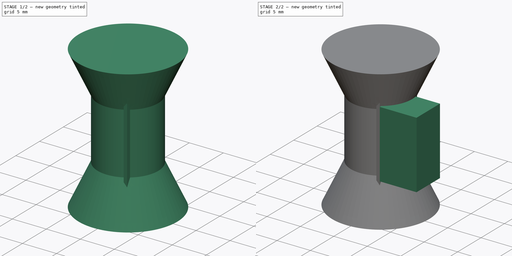
[diagram: build sequence overview — one tinted view per stage of 2, left to right]
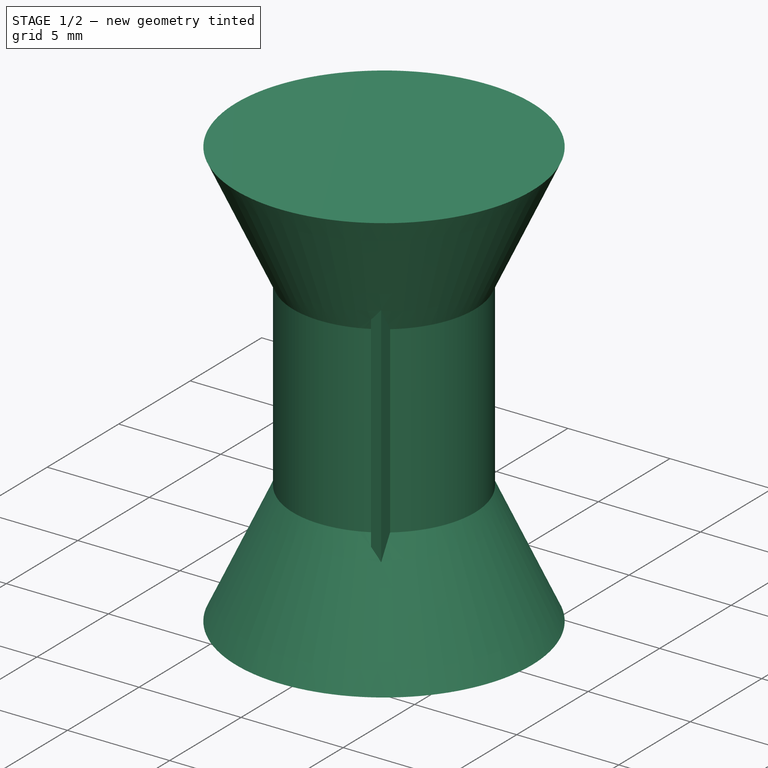
[diagram: stage 1 of 2 — iso view after this stage's code; geometry added in this stage tinted green]
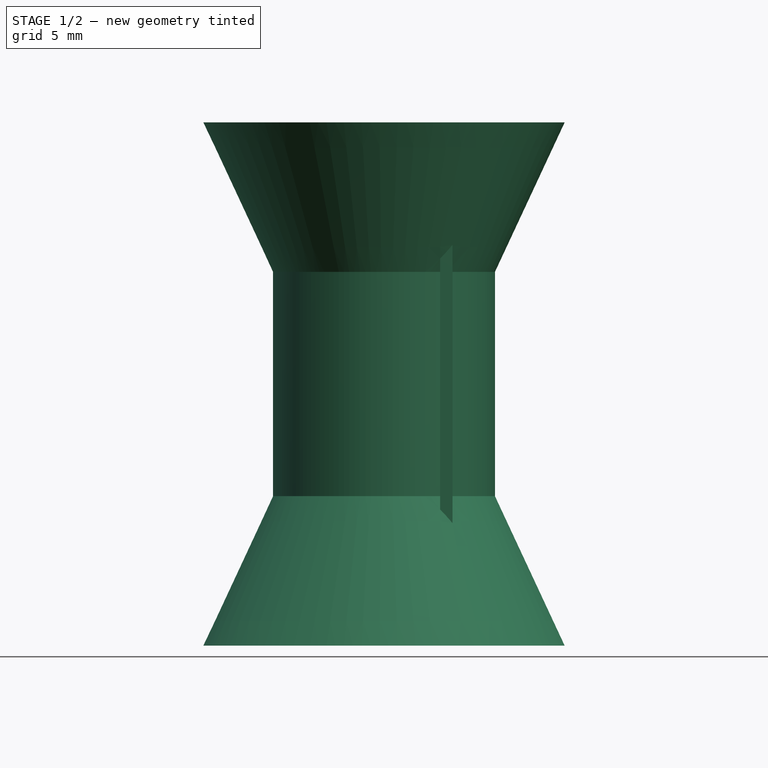
[diagram: stage 1 of 2 — front view after this stage's code; geometry added in this stage tinted green]
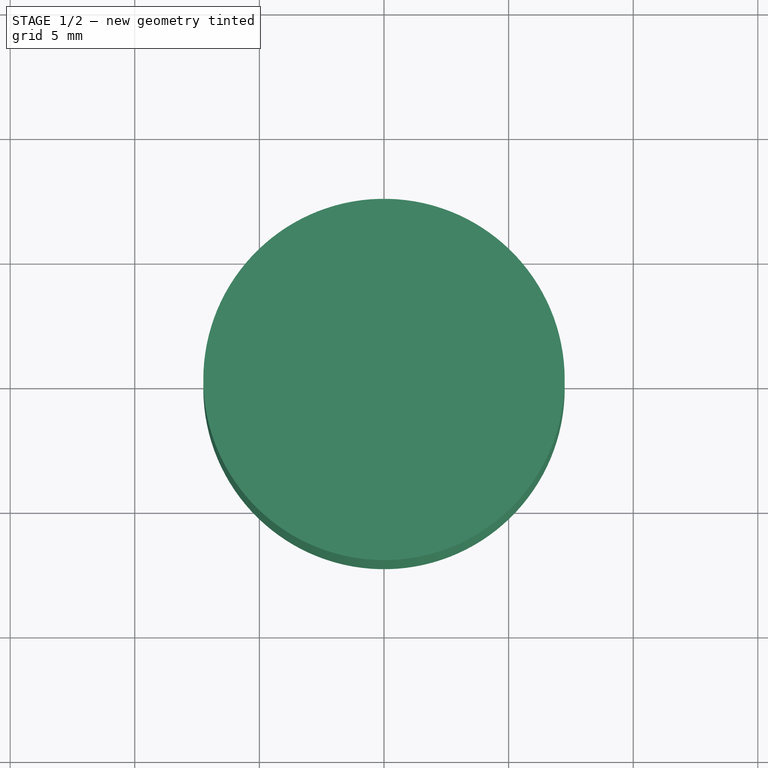
[diagram: stage 1 of 2 — top view after this stage's code; geometry added in this stage tinted green]
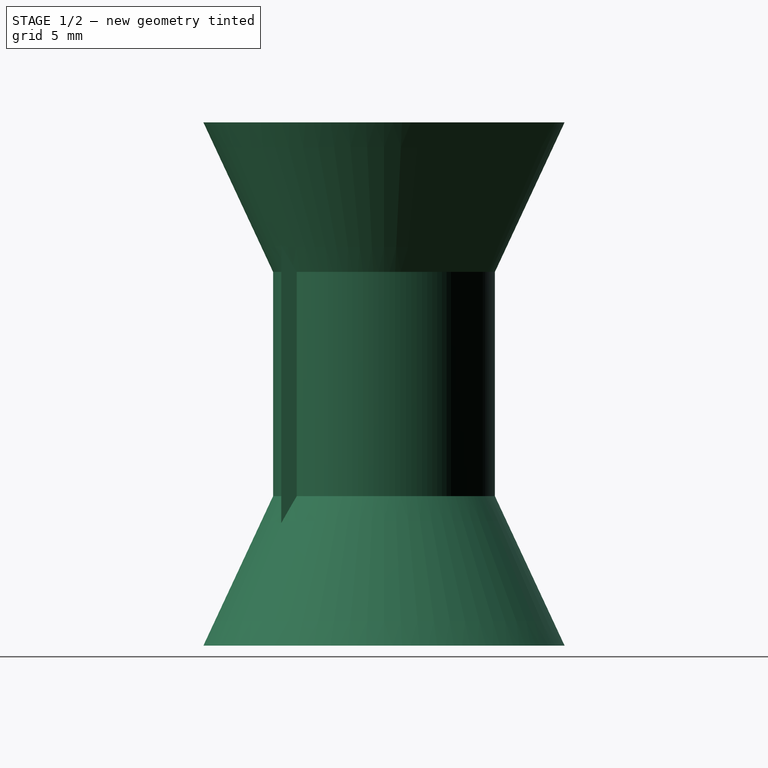
[diagram: stage 1 of 2 — right view after this stage's code; geometry added in this stage tinted green]
FCSTD DOCUMENT  (FreeCAD 0.16R6712 (Git))
Label: paddle_hindge_bool_v2
License: All rights reserved
LicenseURL: http://en.wikipedia.org/wiki/All_rights_reserved
objects: Sketcher::SketchObject×4, PartDesign::Pad×2, PartDesign::Revolution×1
note: 10 computed .brp shape members not serialized (recipe doc carries the construction recipe); baked Part::Feature solids carry a one-line shape summary decoded from their .brp

FEATURE [Sketcher::SketchObject] Sketch
  Placement = pos=(0,0,0) rot=(1,0,0;1.5708rad)
  sketch-geometry (8):
    g0: LineSegment StartX=0 StartY=0 StartZ=0 EndX=7.25 EndY=0 EndZ=0
    g1: LineSegment StartX=7.25 StartY=0 StartZ=0 EndX=4.45215 EndY=6 EndZ=0
    g2: LineSegment StartX=4.45215 StartY=6 StartZ=0 EndX=4.45215 EndY=15 EndZ=0
    g3: LineSegment StartX=4.45215 StartY=15 StartZ=0 EndX=7.25 EndY=21 EndZ=0
    g4: LineSegment StartX=7.25 StartY=21 StartZ=0 EndX=0 EndY=21 EndZ=0
    g5: LineSegment [constr] StartX=0 StartY=15 StartZ=0 EndX=4.45215 EndY=15 EndZ=0
    g6: LineSegment [constr] StartX=4.45215 StartY=6 StartZ=0 EndX=0 EndY=6 EndZ=0
    g7: LineSegment StartX=0 StartY=21 StartZ=0 EndX=0 EndY=0 EndZ=0
  constraints (24):
    c: Horizontal(g0)
    c: Coincident(g0,g1)
    c: Coincident(g1,g2)
    c: Vertical(g2)
    c: Coincident(g2,g3)
    c: Coincident(g3,g4)
    c: Horizontal(g4)
    c: Equal(g0,g4)
    c: Coincident(g5,g2)
    c: Horizontal(g5)
    c: Coincident(g6,g1)
    c: Equal(g1,g3)
    c: Coincident(g7,g4)
    c: Vertical(g7)
    c: Coincident(g0,g7)
    c: Coincident(g0,g-1)
    c: Equal(g6,g5)
    c: Horizontal(g6)
    c: PointOnObject(g5,g7)
    c: Angle(g1,g0) = 1.13446
    c: DistanceX(g0,g0) = 7.25
    c: DistanceY(g7,g7) = 21
    c: DistanceY(g2,g2) = 9
    c: DistanceX(g5,g5) = 4.45215
FEATURE [PartDesign::Revolution] Revolution
  Angle = 360
  Axis = (0,0,1)
  Base = (0,0,0)
  Placement = pos=(0,0,0) rot=(1,0,0;1.5708rad)
  ReferenceAxis = -> Sketch [V_Axis]
  Reversed = true
  Sketch = -> Sketch
FEATURE [Sketcher::SketchObject] Sketch001
  Placement = pos=(0,0,21) rot=(0,0,1;3.14159rad)
  Support = -> Revolution [Face5]
  sketch-geometry (8):
    g0: LineSegment StartX=-2.25 StartY=4.125 StartZ=0 EndX=-2.75 EndY=4.125 EndZ=0
    g1: LineSegment StartX=-2.75 StartY=4.125 StartZ=0 EndX=-2.75 EndY=-2.125 EndZ=0
    g2: LineSegment StartX=-2.75 StartY=-2.125 StartZ=0 EndX=-2.25 EndY=-2.125 EndZ=0
    g3: LineSegment StartX=-2.25 StartY=-2.125 StartZ=0 EndX=-2.25 EndY=4.125 EndZ=0
    g4: LineSegment [constr] StartX=-2.25 StartY=4.125 StartZ=0 EndX=-2.5 EndY=1 EndZ=0
    g5: LineSegment [constr] StartX=-2.75 StartY=4.125 StartZ=0 EndX=-2.5 EndY=1 EndZ=0
    g6: LineSegment [constr] StartX=-2.75 StartY=-2.125 StartZ=0 EndX=-2.5 EndY=1 EndZ=0
    g7: LineSegment [constr] StartX=-2.25 StartY=-2.125 StartZ=0 EndX=-2.5 EndY=1 EndZ=0
  constraints (22):
    c: Coincident(g0,g1)
    c: Coincident(g1,g2)
    c: Coincident(g2,g3)
    c: Coincident(g3,g0)
    c: Horizontal(g0)
    c: Horizontal(g2)
    c: Vertical(g1)
    c: Vertical(g3)
    c: DistanceX(g2,g-1) = 2.25
    c: DistanceX(g2,g2) = 0.5
    c: DistanceY(g1,g1) = 6.25
    c: Coincident(g4,g0)
    c: Coincident(g5,g0)
    c: Coincident(g5,g4)
    c: Coincident(g6,g1)
    c: Coincident(g7,g2)
    c: Coincident(g4,g6)
    c: Coincident(g4,g7)
    c: Equal(g4,g5)
    c: Equal(g5,g7)
    c: Equal(g7,g6)
    c: DistanceY(g-1,g4) = 1
FEATURE [PartDesign::Pad] Pad
  Length = 20
  Length2 = 100
  Placement = pos=(0,0,0) rot=(1,0,0;1.5708rad)
  Reversed = true
  Sketch = -> Sketch001
  Type = 0
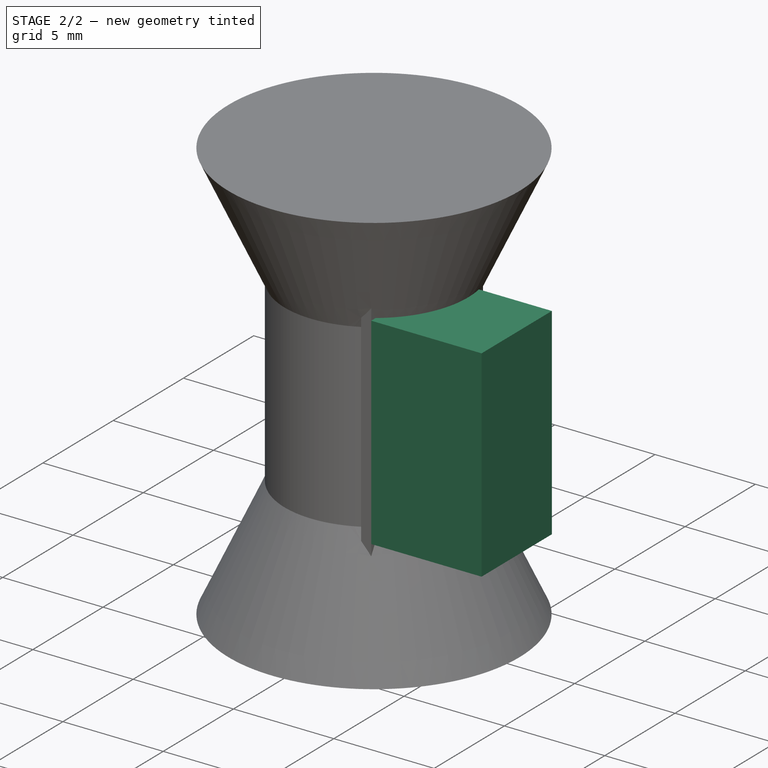
[diagram: stage 2 of 2 — iso view after this stage's code; geometry added in this stage tinted green]
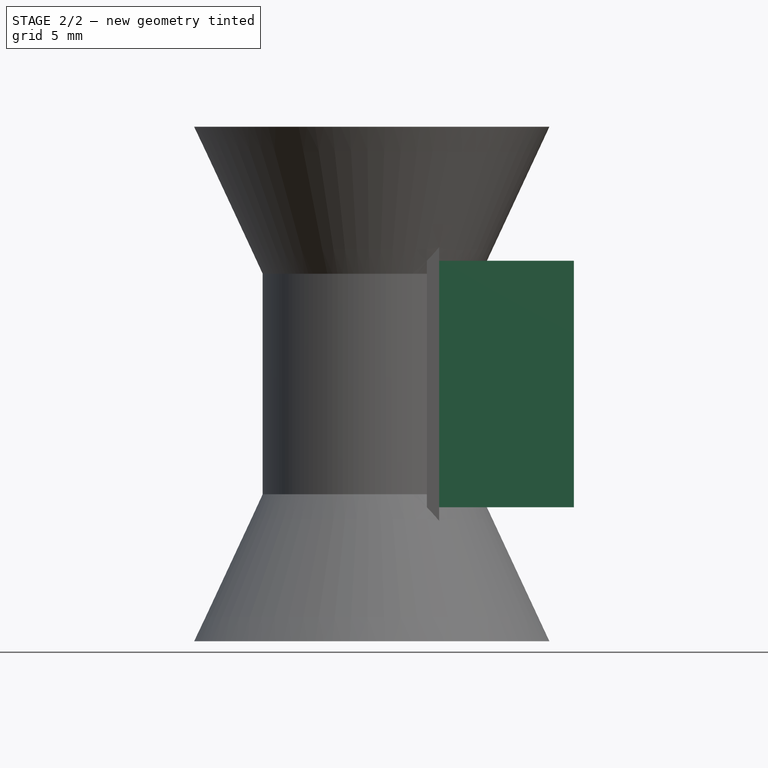
[diagram: stage 2 of 2 — front view after this stage's code; geometry added in this stage tinted green]
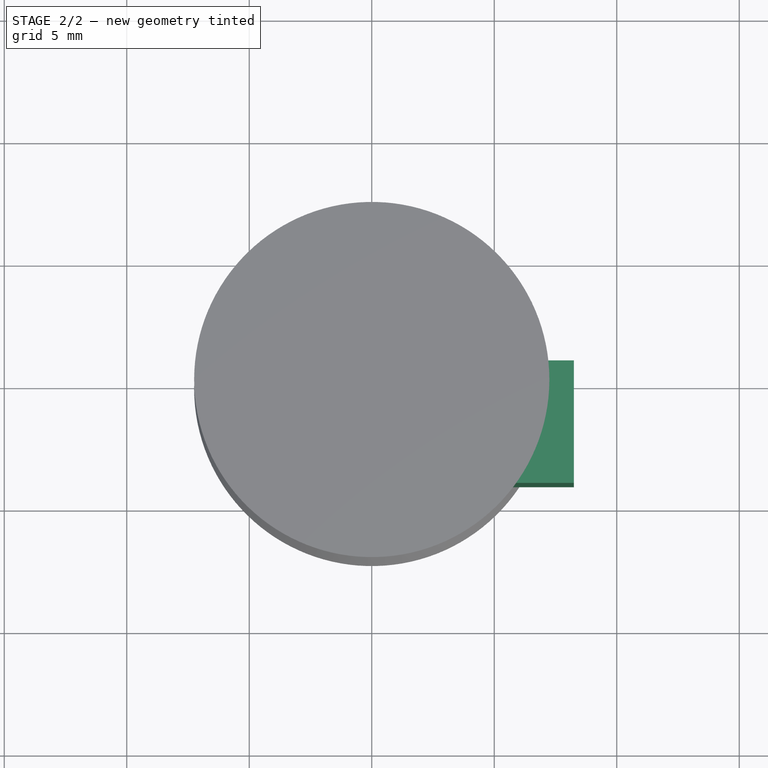
[diagram: stage 2 of 2 — top view after this stage's code; geometry added in this stage tinted green]
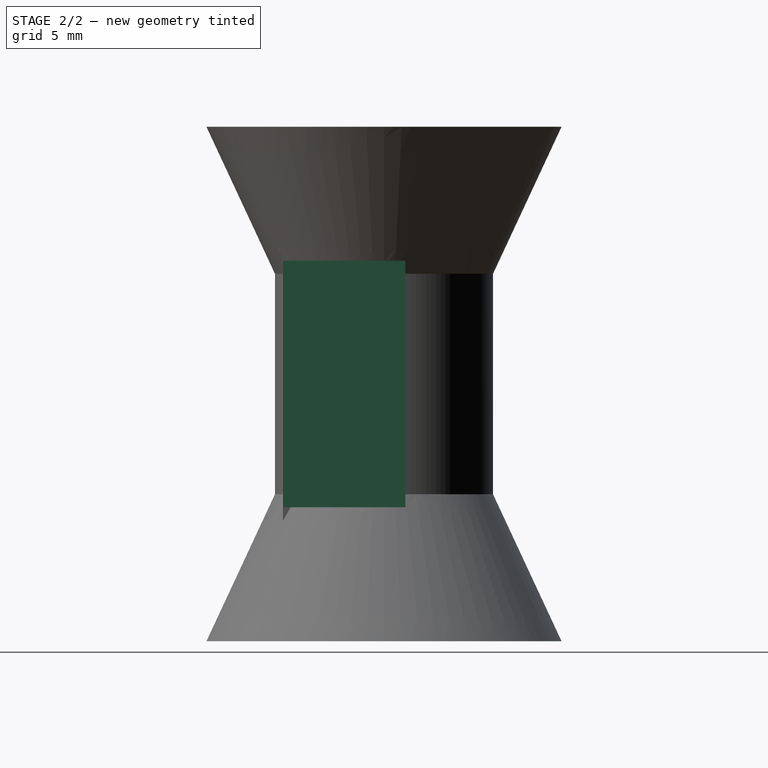
[diagram: stage 2 of 2 — right view after this stage's code; geometry added in this stage tinted green]
FEATURE [Sketcher::SketchObject] Sketch002
  ExternalGeometry = -> [Pad]
  Placement = pos=(0,-4.125,0) rot=(1,0,0;1.5708rad)
  Support = -> Pad [Face5]
  sketch-geometry (4):
    g0: LineSegment StartX=2.25 StartY=15.5288 StartZ=0 EndX=8.25 EndY=15.5288 EndZ=0
    g1: LineSegment StartX=8.25 StartY=15.5288 StartZ=0 EndX=8.25 EndY=5.4712 EndZ=0
    g2: LineSegment StartX=8.25 StartY=5.4712 StartZ=0 EndX=2.25 EndY=5.4712 EndZ=0
    g3: LineSegment StartX=2.25 StartY=5.4712 StartZ=0 EndX=2.25 EndY=15.5288 EndZ=0
  constraints (11):
    c: Coincident(g0,g1)
    c: Coincident(g1,g2)
    c: Coincident(g2,g3)
    c: Coincident(g3,g0)
    c: Horizontal(g0)
    c: Horizontal(g2)
    c: Vertical(g1)
    c: Vertical(g3)
    c: Coincident(g0,g-3)
    c: Coincident(g2,g-3)
    c: DistanceX(g0,g0) = 6
FEATURE [PartDesign::Pad] Pad001
  Length = 5
  Length2 = 100
  Placement = pos=(0,0,0) rot=(1,0,0;1.5708rad)
  Reversed = true
  Sketch = -> Sketch002
  Type = 0
FEATURE [Sketcher::SketchObject] Sketch003
  ExternalGeometry = -> [Pad001]
  Placement = pos=(8.25,0,0) rot=(0.707107,0,0.707107;3.14159rad)
  Support = -> Pad001 [Face10]
  constraints (3):
    c: DistanceY(g-1,g-3) = 4.125
    c: DistanceY(g-3,g-1) = 0.875
    c: DistanceX(g-4,g-4) = 10.0576
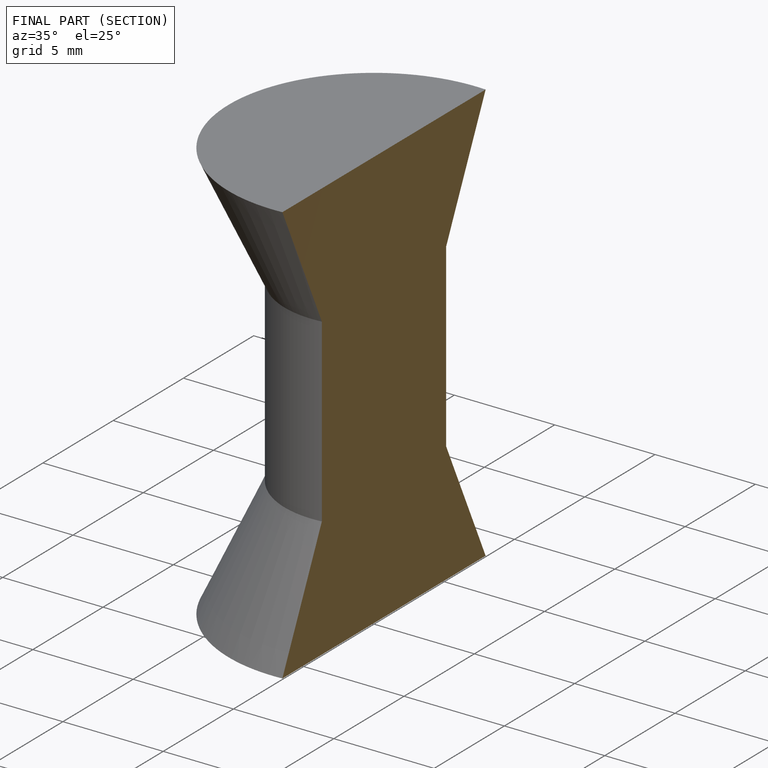
[diagram: finished part — half-section view (interior)]
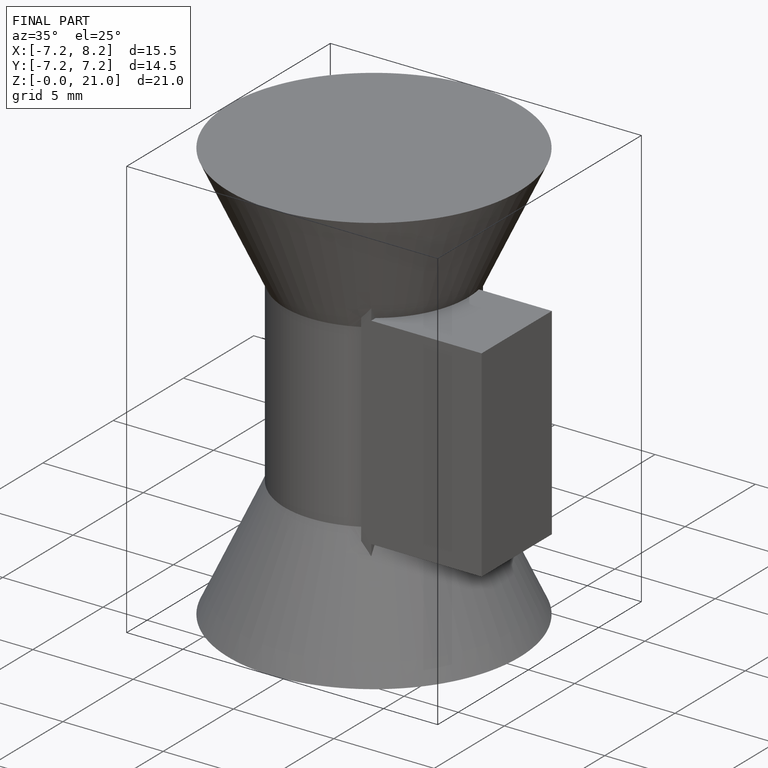
[diagram: finished part — iso view with bounding-box wireframe]
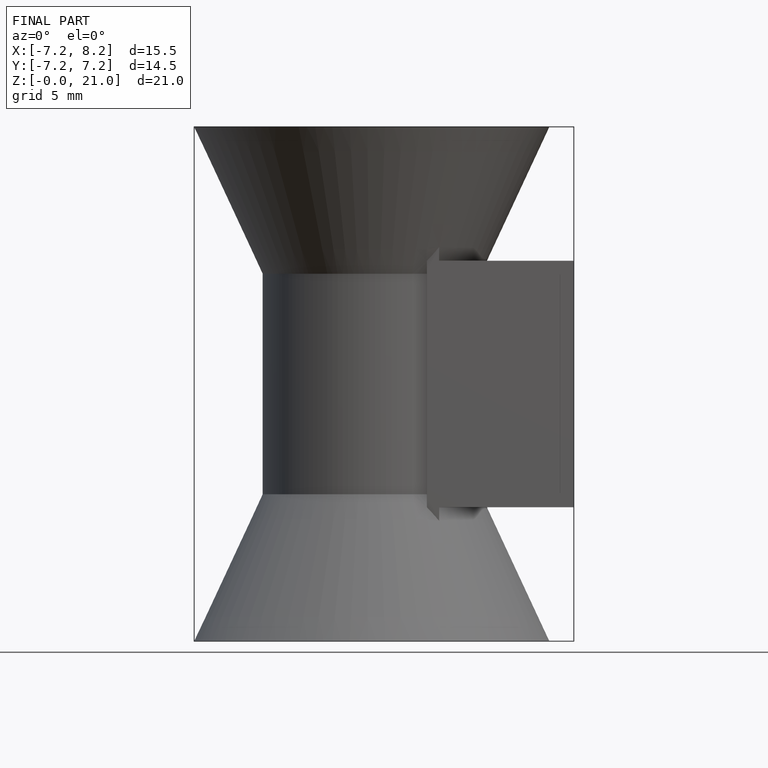
[diagram: finished part — front view with bounding-box wireframe]
